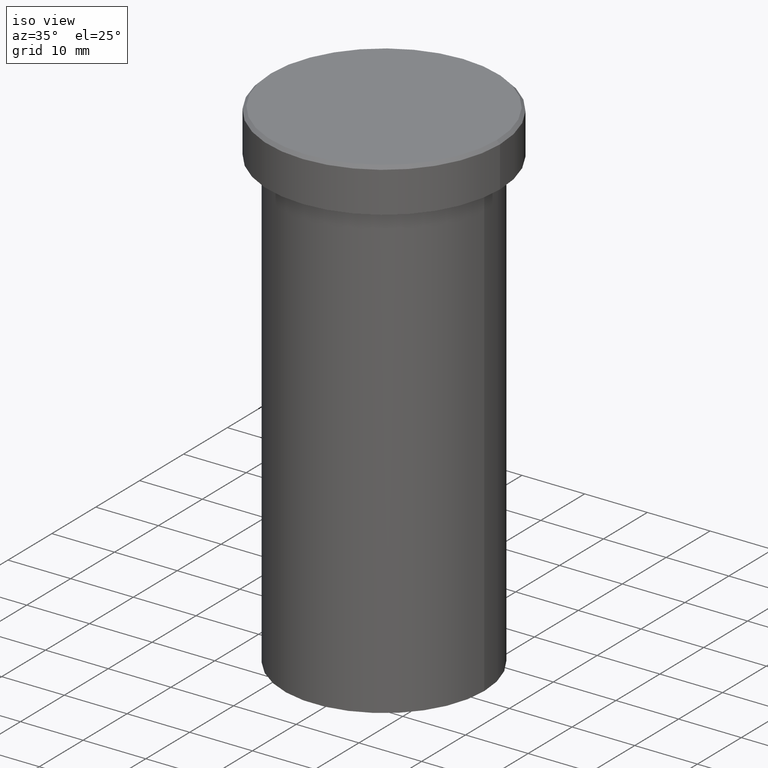
[diagram: clean part render]
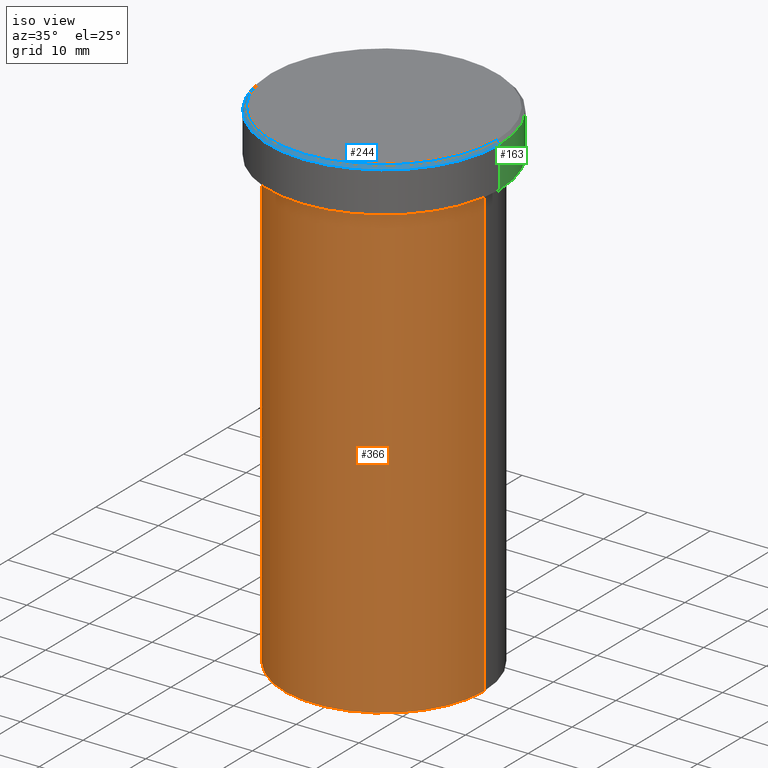
[diagram: same view with three faces highlighted in distinct colors, each labeled with its STEP entity id]
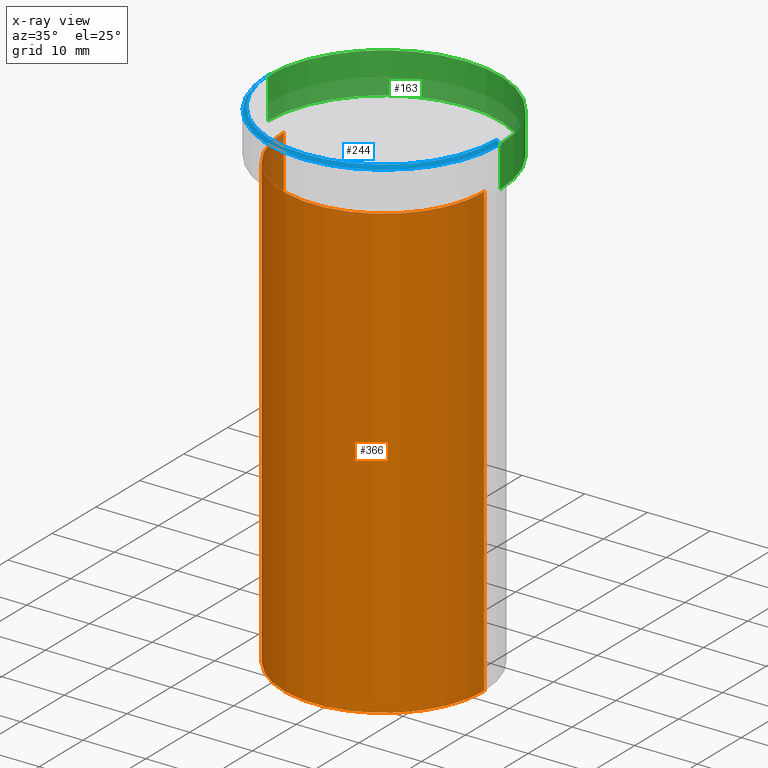
[diagram: x-ray of the same camera — body ghosted, the three highlighted faces saturated]
A machine part, iso view with three faces highlighted in distinct colors.
The next image is the same camera in x-ray (body ghosted, the three faces saturated) — at least one of them is partly hidden behind the body in this view.
Their STEP definitions:

[orange] entity #366 — the highlighted cylindrical surface (partial cylindrical patch) has radius 16 mm, axis along (-0, -0, 1).
#3 = DIRECTION ( 'NONE',  ( -0.000000000000000000, -0.000000000000000000, 1.000000000000000000 ) ) ;
#5 = DIRECTION ( 'NONE',  ( -0.000000000000000000, -0.000000000000000000, 1.000000000000000000 ) ) ;
#10 = CIRCLE ( 'NONE', #383, 16.00000000000000000 ) ;
#19 = DIRECTION ( 'NONE',  ( 1.000000000000000000, 0.000000000000000000, 0.000000000000000000 ) ) ;
#37 = VECTOR ( 'NONE', #5, 1000.000000000000000 ) ;
#43 = CARTESIAN_POINT ( 'NONE',  ( 16.00000000000000000, 0.000000000000000000, -8.000000000000000000 ) ) ;
#51 = CARTESIAN_POINT ( 'NONE',  ( 16.00000000000000000, 0.000000000000000000, -80.00000000000000000 ) ) ;
#57 = VERTEX_POINT ( 'NONE', #301 ) ;
#61 = AXIS2_PLACEMENT_3D ( 'NONE', #181, #3, #347 ) ;
#72 = DIRECTION ( 'NONE',  ( -0.000000000000000000, -0.000000000000000000, 1.000000000000000000 ) ) ;
#74 = VERTEX_POINT ( 'NONE', #90 ) ;
#75 = LINE ( 'NONE', #311, #151 ) ;
#90 = CARTESIAN_POINT ( 'NONE',  ( -16.00000000000000000, 1.959434878635765131E-15, -80.00000000000000000 ) ) ;
#95 = ORIENTED_EDGE ( 'NONE', *, *, #131, .F. ) ;
#97 = ORIENTED_EDGE ( 'NONE', *, *, #210, .T. ) ;
#109 = CARTESIAN_POINT ( 'NONE',  ( 0.000000000000000000, 0.000000000000000000, -80.00000000000000000 ) ) ;
#111 = DIRECTION ( 'NONE',  ( 1.000000000000000000, 0.000000000000000000, 0.000000000000000000 ) ) ;
#131 = EDGE_CURVE ( 'NONE', #57, #229, #10, .T. ) ;
#151 = VECTOR ( 'NONE', #72, 1000.000000000000000 ) ;
#181 = CARTESIAN_POINT ( 'NONE',  ( 0.000000000000000000, 0.000000000000000000, 0.000000000000000000 ) ) ;
#185 = CYLINDRICAL_SURFACE ( 'NONE', #61, 16.00000000000000000 ) ;
#195 = CIRCLE ( 'NONE', #233, 16.00000000000000000 ) ;
#210 = EDGE_CURVE ( 'NONE', #275, #229, #321, .T. ) ;
#212 = EDGE_LOOP ( 'NONE', ( #338, #249, #97, #95 ) ) ;
#229 = VERTEX_POINT ( 'NONE', #43 ) ;
#233 = AXIS2_PLACEMENT_3D ( 'NONE', #109, #349, #19 ) ;
#249 = ORIENTED_EDGE ( 'NONE', *, *, #326, .T. ) ;
#250 = DIRECTION ( 'NONE',  ( -0.000000000000000000, -0.000000000000000000, 1.000000000000000000 ) ) ;
#251 = FACE_OUTER_BOUND ( 'NONE', #212, .T. ) ;
#275 = VERTEX_POINT ( 'NONE', #51 ) ;
#276 = EDGE_CURVE ( 'NONE', #74, #57, #75, .T. ) ;
#294 = CARTESIAN_POINT ( 'NONE',  ( 16.00000000000000000, 0.000000000000000000, 0.000000000000000000 ) ) ;
#301 = CARTESIAN_POINT ( 'NONE',  ( -16.00000000000000000, 1.959434878635765131E-15, -8.000000000000000000 ) ) ;
#311 = CARTESIAN_POINT ( 'NONE',  ( -16.00000000000000000, 1.959434878635765131E-15, 0.000000000000000000 ) ) ;
#321 = LINE ( 'NONE', #294, #37 ) ;
#326 = EDGE_CURVE ( 'NONE', #74, #275, #195, .T. ) ;
#338 = ORIENTED_EDGE ( 'NONE', *, *, #276, .F. ) ;
#347 = DIRECTION ( 'NONE',  ( 1.000000000000000000, 0.000000000000000000, 0.000000000000000000 ) ) ;
#349 = DIRECTION ( 'NONE',  ( -0.000000000000000000, -0.000000000000000000, 1.000000000000000000 ) ) ;
#366 = ADVANCED_FACE ( 'NONE', ( #251 ), #185, .T. ) ;
#383 = AXIS2_PLACEMENT_3D ( 'NONE', #384, #250, #111 ) ;
#384 = CARTESIAN_POINT ( 'NONE',  ( 0.000000000000000000, 0.000000000000000000, -8.000000000000000000 ) ) ;

[blue] entity #244 — the highlighted conical surface has half-angle 45 deg.
#2 = VERTEX_POINT ( 'NONE', #41 ) ;
#15 = DIRECTION ( 'NONE',  ( -0.7071067811865402453, 0.000000000000000000, -0.7071067811865549002 ) ) ;
#24 = ORIENTED_EDGE ( 'NONE', *, *, #147, .F. ) ;
#25 = FACE_OUTER_BOUND ( 'NONE', #237, .T. ) ;
#27 = DIRECTION ( 'NONE',  ( -0.000000000000000000, -0.000000000000000000, 1.000000000000000000 ) ) ;
#29 = DIRECTION ( 'NONE',  ( 0.000000000000000000, 0.000000000000000000, -1.000000000000000000 ) ) ;
#30 = CONICAL_SURFACE ( 'NONE', #388, 17.99999999999998934, 0.7853981633974380649 ) ;
#36 = AXIS2_PLACEMENT_3D ( 'NONE', #387, #27, #86 ) ;
#41 = CARTESIAN_POINT ( 'NONE',  ( -18.50000000000000000, 2.265596578422603396E-15, -0.5000000000000213163 ) ) ;
#58 = EDGE_CURVE ( 'NONE', #270, #2, #137, .T. ) ;
#86 = DIRECTION ( 'NONE',  ( 1.000000000000000000, 0.000000000000000000, 0.000000000000000000 ) ) ;
#103 = DIRECTION ( 'NONE',  ( 0.000000000000000000, 0.000000000000000000, -1.000000000000000000 ) ) ;
#116 = VECTOR ( 'NONE', #168, 1000.000000000000114 ) ;
#117 = CIRCLE ( 'NONE', #36, 17.99999999999998934 ) ;
#118 = ORIENTED_EDGE ( 'NONE', *, *, #361, .T. ) ;
#127 = VECTOR ( 'NONE', #15, 1000.000000000000114 ) ;
#128 = AXIS2_PLACEMENT_3D ( 'NONE', #150, #103, #240 ) ;
#133 = LINE ( 'NONE', #360, #127 ) ;
#135 = VERTEX_POINT ( 'NONE', #286 ) ;
#137 = CIRCLE ( 'NONE', #128, 18.50000000000000000 ) ;
#147 = EDGE_CURVE ( 'NONE', #213, #135, #117, .T. ) ;
#150 = CARTESIAN_POINT ( 'NONE',  ( 0.000000000000000000, 0.000000000000000000, -0.5000000000000213163 ) ) ;
#154 = DIRECTION ( 'NONE',  ( -1.000000000000000000, 0.000000000000000000, 0.000000000000000000 ) ) ;
#167 = LINE ( 'NONE', #300, #116 ) ;
#168 = DIRECTION ( 'NONE',  ( 0.7071067811865402453, 8.659560562354844111E-17, -0.7071067811865549002 ) ) ;
#178 = CARTESIAN_POINT ( 'NONE',  ( 0.000000000000000000, 0.000000000000000000, 0.000000000000000000 ) ) ;
#180 = EDGE_CURVE ( 'NONE', #135, #270, #167, .T. ) ;
#213 = VERTEX_POINT ( 'NONE', #323 ) ;
#237 = EDGE_LOOP ( 'NONE', ( #330, #24, #118, #352 ) ) ;
#240 = DIRECTION ( 'NONE',  ( 1.000000000000000000, 0.000000000000000000, 0.000000000000000000 ) ) ;
#244 = ADVANCED_FACE ( 'NONE', ( #25 ), #30, .T. ) ;
#270 = VERTEX_POINT ( 'NONE', #402 ) ;
#286 = CARTESIAN_POINT ( 'NONE',  ( 17.99999999999998934, 2.234980408443918820E-15, 0.000000000000000000 ) ) ;
#300 = CARTESIAN_POINT ( 'NONE',  ( 17.99999999999998934, 2.204364238465234244E-15, 0.000000000000000000 ) ) ;
#323 = CARTESIAN_POINT ( 'NONE',  ( -17.99999999999998934, 0.000000000000000000, 0.000000000000000000 ) ) ;
#330 = ORIENTED_EDGE ( 'NONE', *, *, #180, .F. ) ;
#352 = ORIENTED_EDGE ( 'NONE', *, *, #58, .F. ) ;
#360 = CARTESIAN_POINT ( 'NONE',  ( -17.99999999999998934, 0.000000000000000000, 0.000000000000000000 ) ) ;
#361 = EDGE_CURVE ( 'NONE', #213, #2, #133, .T. ) ;
#387 = CARTESIAN_POINT ( 'NONE',  ( 0.000000000000000000, 0.000000000000000000, 0.000000000000000000 ) ) ;
#388 = AXIS2_PLACEMENT_3D ( 'NONE', #178, #29, #154 ) ;
#402 = CARTESIAN_POINT ( 'NONE',  ( 18.50000000000000000, 0.000000000000000000, -0.5000000000000213163 ) ) ;

[green] entity #163 — the highlighted cylindrical surface (partial cylindrical patch) has radius 18.5 mm, axis along (-0, -0, 1).
#2 = VERTEX_POINT ( 'NONE', #41 ) ;
#7 = ORIENTED_EDGE ( 'NONE', *, *, #98, .T. ) ;
#12 = CARTESIAN_POINT ( 'NONE',  ( 0.000000000000000000, 0.000000000000000000, -0.5000000000000213163 ) ) ;
#17 = VERTEX_POINT ( 'NONE', #253 ) ;
#41 = CARTESIAN_POINT ( 'NONE',  ( -18.50000000000000000, 2.265596578422603396E-15, -0.5000000000000213163 ) ) ;
#45 = EDGE_CURVE ( 'NONE', #47, #270, #161, .T. ) ;
#47 = VERTEX_POINT ( 'NONE', #291 ) ;
#55 = ORIENTED_EDGE ( 'NONE', *, *, #45, .F. ) ;
#63 = DIRECTION ( 'NONE',  ( 1.000000000000000000, 0.000000000000000000, 0.000000000000000000 ) ) ;
#65 = DIRECTION ( 'NONE',  ( -0.000000000000000000, -0.000000000000000000, 1.000000000000000000 ) ) ;
#70 = CARTESIAN_POINT ( 'NONE',  ( -18.50000000000000000, 2.265596578422603396E-15, 0.000000000000000000 ) ) ;
#73 = EDGE_CURVE ( 'NONE', #47, #17, #164, .T. ) ;
#98 = EDGE_CURVE ( 'NONE', #17, #2, #125, .T. ) ;
#100 = CIRCLE ( 'NONE', #332, 18.50000000000000000 ) ;
#102 = ORIENTED_EDGE ( 'NONE', *, *, #73, .T. ) ;
#110 = DIRECTION ( 'NONE',  ( -0.000000000000000000, -0.000000000000000000, 1.000000000000000000 ) ) ;
#125 = LINE ( 'NONE', #70, #369 ) ;
#132 = DIRECTION ( 'NONE',  ( 0.000000000000000000, 0.000000000000000000, -1.000000000000000000 ) ) ;
#161 = LINE ( 'NONE', #406, #319 ) ;
#163 = ADVANCED_FACE ( 'NONE', ( #278 ), #343, .T. ) ;
#164 = CIRCLE ( 'NONE', #207, 18.50000000000000000 ) ;
#177 = CARTESIAN_POINT ( 'NONE',  ( 0.000000000000000000, 0.000000000000000000, 0.000000000000000000 ) ) ;
#207 = AXIS2_PLACEMENT_3D ( 'NONE', #281, #110, #328 ) ;
#224 = EDGE_CURVE ( 'NONE', #2, #270, #100, .T. ) ;
#238 = ORIENTED_EDGE ( 'NONE', *, *, #224, .T. ) ;
#246 = EDGE_LOOP ( 'NONE', ( #102, #7, #238, #55 ) ) ;
#253 = CARTESIAN_POINT ( 'NONE',  ( -18.50000000000000000, 2.265596578422603396E-15, -6.999999999999998224 ) ) ;
#255 = DIRECTION ( 'NONE',  ( -0.000000000000000000, -0.000000000000000000, 1.000000000000000000 ) ) ;
#270 = VERTEX_POINT ( 'NONE', #402 ) ;
#278 = FACE_OUTER_BOUND ( 'NONE', #246, .T. ) ;
#281 = CARTESIAN_POINT ( 'NONE',  ( 0.000000000000000000, 0.000000000000000000, -6.999999999999998224 ) ) ;
#291 = CARTESIAN_POINT ( 'NONE',  ( 18.50000000000000000, 0.000000000000000000, -6.999999999999998224 ) ) ;
#319 = VECTOR ( 'NONE', #65, 1000.000000000000000 ) ;
#328 = DIRECTION ( 'NONE',  ( 1.000000000000000000, 0.000000000000000000, 0.000000000000000000 ) ) ;
#332 = AXIS2_PLACEMENT_3D ( 'NONE', #12, #132, #391 ) ;
#343 = CYLINDRICAL_SURFACE ( 'NONE', #362, 18.50000000000000000 ) ;
#362 = AXIS2_PLACEMENT_3D ( 'NONE', #177, #403, #63 ) ;
#369 = VECTOR ( 'NONE', #255, 1000.000000000000000 ) ;
#391 = DIRECTION ( 'NONE',  ( 1.000000000000000000, 0.000000000000000000, 0.000000000000000000 ) ) ;
#402 = CARTESIAN_POINT ( 'NONE',  ( 18.50000000000000000, 0.000000000000000000, -0.5000000000000213163 ) ) ;
#403 = DIRECTION ( 'NONE',  ( -0.000000000000000000, -0.000000000000000000, 1.000000000000000000 ) ) ;
#406 = CARTESIAN_POINT ( 'NONE',  ( 18.50000000000000000, 0.000000000000000000, 0.000000000000000000 ) ) ;